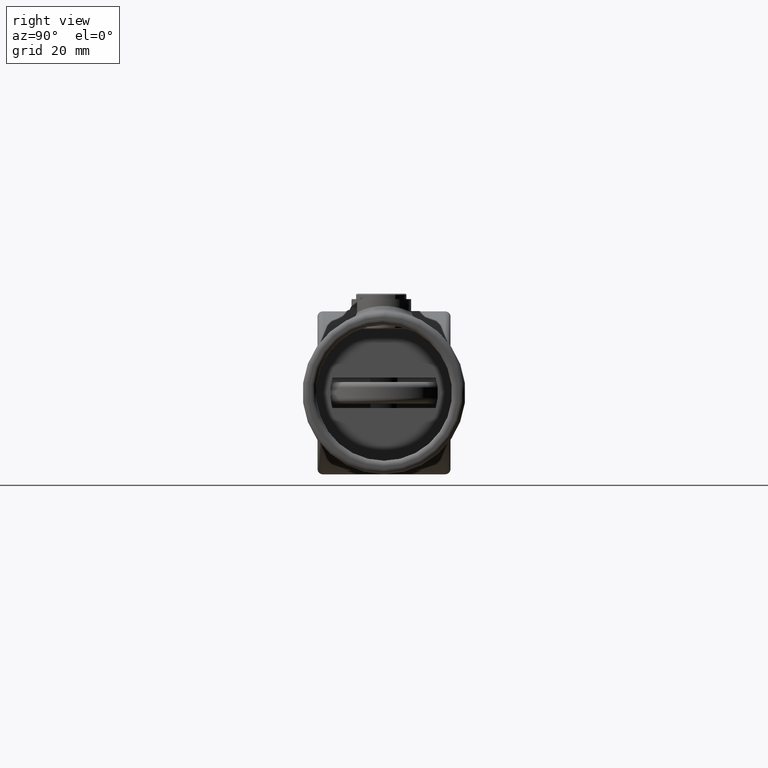
[diagram: clean part render]
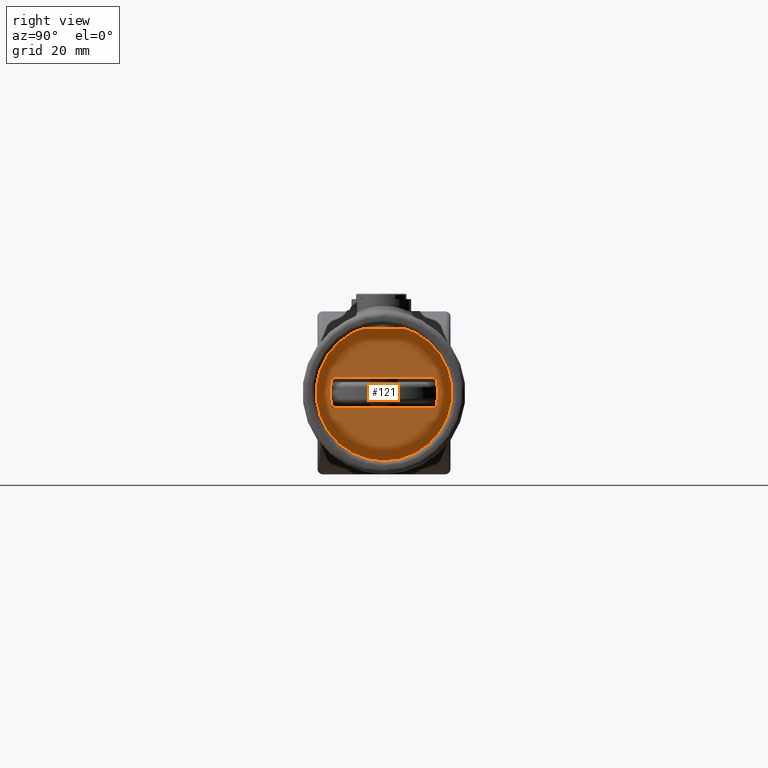
[diagram: same view with one face highlighted and labeled with its STEP entity id]
A machine part, right view. The second image highlights one B-rep face of the part: STEP entity #121.
In plain terms, the highlighted planar face has unit normal (-1, 0, 0).
Its self-contained STEP definition (entity closure, byte-faithful):
#107 = FACE_BOUND ( 'NONE', #3915, .T. ) ;
#121 = ADVANCED_FACE ( 'NONE', ( #107, #699 ), #611, .F. ) ;
#285 = VERTEX_POINT ( 'NONE', #2586 ) ;
#611 = PLANE ( 'NONE',  #2815 ) ;
#696 = CARTESIAN_POINT ( 'NONE',  ( 0.000000000000000000, 51.00000000000000711, 0.000000000000000000 ) ) ;
#699 = FACE_OUTER_BOUND ( 'NONE', #3481, .T. ) ;
#714 = DIRECTION ( 'NONE',  ( 0.000000000000000000, 1.000000000000000000, 0.000000000000000000 ) ) ;
#963 = VERTEX_POINT ( 'NONE', #5862 ) ;
#1135 = CIRCLE ( 'NONE', #4741, 19.80807915977719702 ) ;
#1309 = EDGE_CURVE ( 'NONE', #285, #4902, #4311, .T. ) ;
#1437 = VERTEX_POINT ( 'NONE', #3176 ) ;
#1445 = CARTESIAN_POINT ( 'NONE',  ( 0.000000000000000000, 51.00000000000000711, 0.000000000000000000 ) ) ;
#1612 = EDGE_CURVE ( 'NONE', #1437, #1437, #3868, .T. ) ;
#1663 = LINE ( 'NONE', #2058, #2565 ) ;
#2058 = CARTESIAN_POINT ( 'NONE',  ( 0.000000000000000000, 51.00000000000000711, 5.599999999999999645 ) ) ;
#2079 = VERTEX_POINT ( 'NONE', #3207 ) ;
#2237 = ORIENTED_EDGE ( 'NONE', *, *, #1309, .T. ) ;
#2417 = DIRECTION ( 'NONE',  ( 0.000000000000000000, 1.000000000000000000, 0.000000000000000000 ) ) ;
#2524 = DIRECTION ( 'NONE',  ( 0.000000000000000000, -0.000000000000000000, 1.000000000000000000 ) ) ;
#2565 = VECTOR ( 'NONE', #4950, 1000.000000000000000 ) ;
#2586 = CARTESIAN_POINT ( 'NONE',  ( 18.99999999999999645, 51.00000000000000711, -5.599999999999999645 ) ) ;
#2606 = ORIENTED_EDGE ( 'NONE', *, *, #6179, .T. ) ;
#2764 = AXIS2_PLACEMENT_3D ( 'NONE', #3553, #714, #4033 ) ;
#2811 = CARTESIAN_POINT ( 'NONE',  ( 0.000000000000000000, 51.00000000000000711, -5.599999999999999645 ) ) ;
#2815 = AXIS2_PLACEMENT_3D ( 'NONE', #3468, #3881, #2524 ) ;
#3176 = CARTESIAN_POINT ( 'NONE',  ( 0.000000000000000000, 51.00000000000000711, 25.00000000000000000 ) ) ;
#3207 = CARTESIAN_POINT ( 'NONE',  ( 18.99999999999999289, 51.00000000000000711, 5.599999999999999645 ) ) ;
#3233 = DIRECTION ( 'NONE',  ( 0.000000000000000000, 1.000000000000000000, 0.000000000000000000 ) ) ;
#3379 = DIRECTION ( 'NONE',  ( 0.000000000000000000, 0.000000000000000000, 1.000000000000000000 ) ) ;
#3468 = CARTESIAN_POINT ( 'NONE',  ( 0.000000000000000000, 51.00000000000000711, 0.000000000000000000 ) ) ;
#3481 = EDGE_LOOP ( 'NONE', ( #4225 ) ) ;
#3553 = CARTESIAN_POINT ( 'NONE',  ( 0.000000000000000000, 51.00000000000000711, 0.000000000000000000 ) ) ;
#3868 = CIRCLE ( 'NONE', #5323, 25.00000000000000000 ) ;
#3881 = DIRECTION ( 'NONE',  ( 0.000000000000000000, 1.000000000000000000, 0.000000000000000000 ) ) ;
#3915 = EDGE_LOOP ( 'NONE', ( #2237, #6034, #4140, #2606 ) ) ;
#4033 = DIRECTION ( 'NONE',  ( 0.000000000000000000, 0.000000000000000000, 1.000000000000000000 ) ) ;
#4140 = ORIENTED_EDGE ( 'NONE', *, *, #4753, .T. ) ;
#4150 = EDGE_CURVE ( 'NONE', #4902, #963, #4320, .T. ) ;
#4171 = VECTOR ( 'NONE', #5176, 1000.000000000000000 ) ;
#4225 = ORIENTED_EDGE ( 'NONE', *, *, #1612, .F. ) ;
#4311 = LINE ( 'NONE', #2811, #4171 ) ;
#4320 = CIRCLE ( 'NONE', #2764, 19.80807915977720413 ) ;
#4741 = AXIS2_PLACEMENT_3D ( 'NONE', #696, #3233, #6059 ) ;
#4753 = EDGE_CURVE ( 'NONE', #963, #2079, #1663, .T. ) ;
#4902 = VERTEX_POINT ( 'NONE', #5883 ) ;
#4950 = DIRECTION ( 'NONE',  ( 1.000000000000000000, 0.000000000000000000, 0.000000000000000000 ) ) ;
#5176 = DIRECTION ( 'NONE',  ( -1.000000000000000000, 0.000000000000000000, 0.000000000000000000 ) ) ;
#5323 = AXIS2_PLACEMENT_3D ( 'NONE', #1445, #2417, #3379 ) ;
#5862 = CARTESIAN_POINT ( 'NONE',  ( -19.00000000000000000, 51.00000000000000711, 5.599999999999999645 ) ) ;
#5883 = CARTESIAN_POINT ( 'NONE',  ( -19.00000000000000000, 51.00000000000000711, -5.599999999999999645 ) ) ;
#6034 = ORIENTED_EDGE ( 'NONE', *, *, #4150, .T. ) ;
#6059 = DIRECTION ( 'NONE',  ( 0.000000000000000000, 0.000000000000000000, 1.000000000000000000 ) ) ;
#6179 = EDGE_CURVE ( 'NONE', #2079, #285, #1135, .T. ) ;